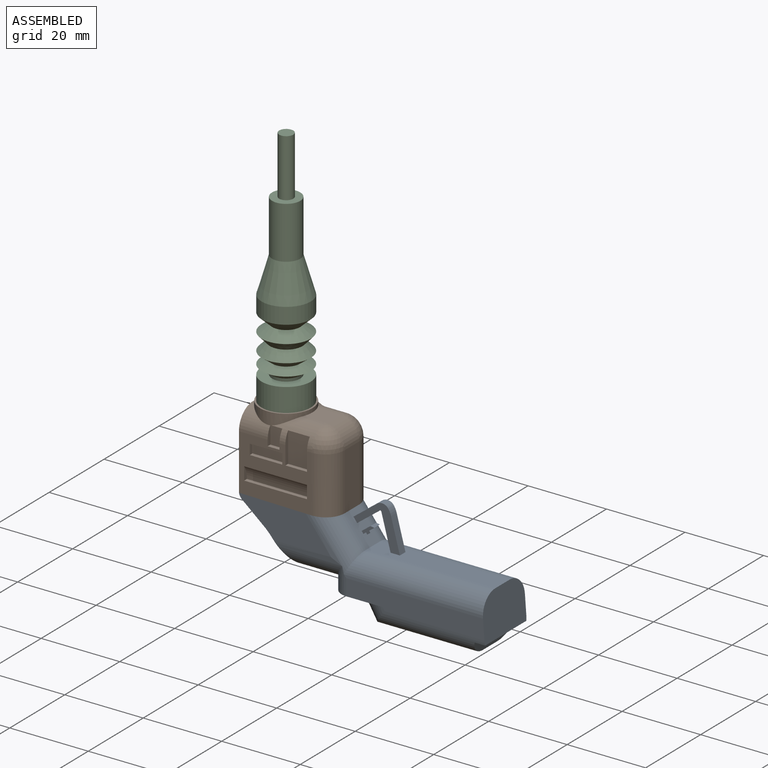
[diagram: assembled view]
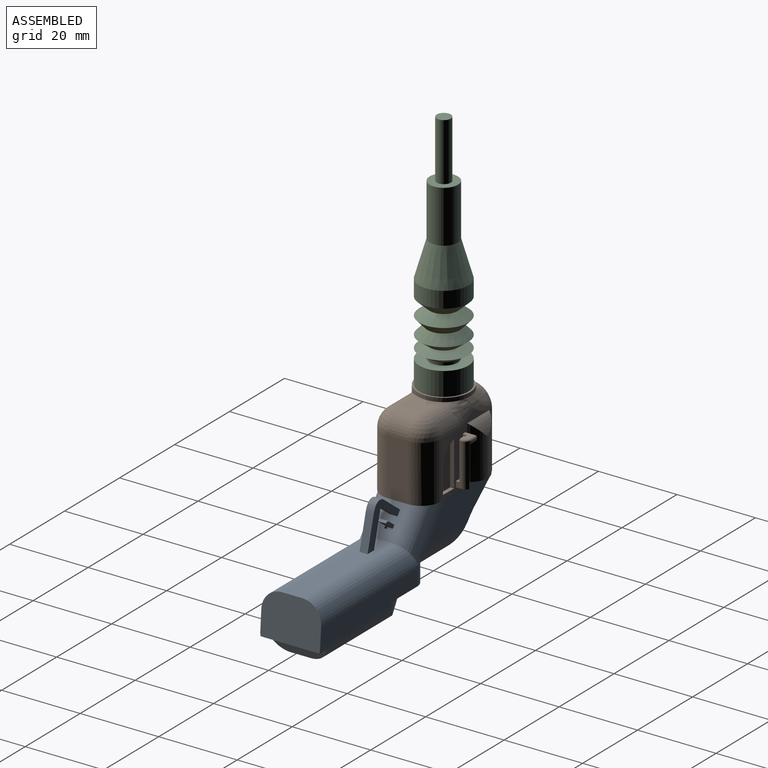
[diagram: assembled view, second angle]
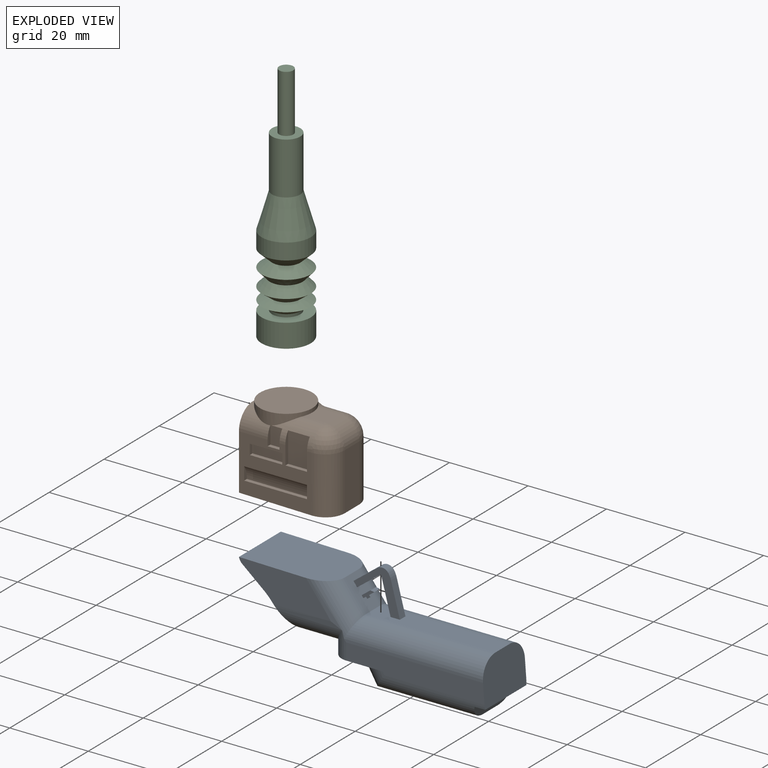
[diagram: exploded view]
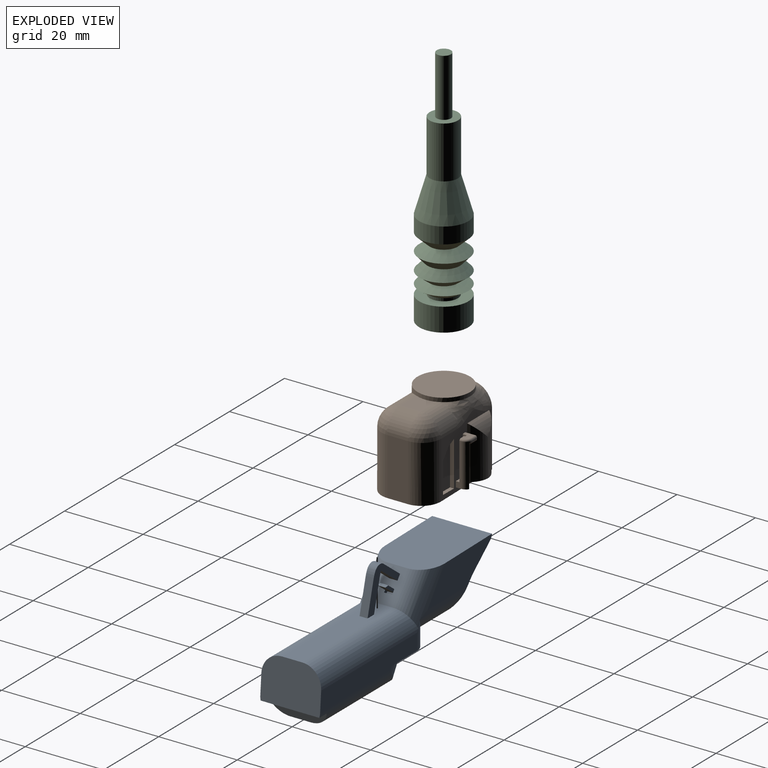
[diagram: exploded view, second angle]
ASSEMBLY  parts=3 mates=2
PART A: 51 faces, bbox 62.8x15.4x26.1 mm
  f0: plane 23.46x15.24mm, normal (0.02,0,1), area 343.8mm2, adj f1,f2,f14,f30,f31,f45
  f1: plane 23.42x8.58mm, normal (0,-1,0), area 133.8mm2, adj f0,f15,f16,f21,f31,f45,f46
  f2: plane 23.42x8.58mm, normal (0,1,0), area 133.8mm2, adj f0,f15,f16,f20,f30,f45,f46
  f3: plane 5.95x4.55mm, normal (0.61,0,-0.79), area 15.3mm2, adj f14,f33,f34,f35
  f4: plane 35.23x4.98mm, normal (0,-1,0), area 166.7mm2, adj f5,f12,f23,f25,f27,f29
  f5: plane 15.24x13.18mm, normal (0,0,-1), area 97.9mm2, adj f4,f6,f18,f19,f22,f23,f26,f27
  f6: plane 5.71x3.32mm, normal (-0.86,0,-0.5), area 11.4mm2, adj f5,f7,f26,f27
  f7: plane 7.19x4.13mm, normal (0,0,-1), area 28.5mm2, adj f6,f8,f24,f25,f26,f27
  f8: plane 7.19x0.1mm, normal (-1,0,0), area 0.6mm2, adj f7,f9,f24,f25
  f9: plane 22.46x5.24mm, normal (0,0,-1), area 117.7mm2, adj f8,f10,f24,f25
  f10: plane 14.97x3.84mm, normal (0.95,0,-0.31), area 50.3mm2, adj f9,f11,f24,f25
  f11: plane 14.97x2.68mm, normal (0,0,-1), area 40.1mm2, adj f10,f12,f24,f25
  f12: plane 15.4x11.29mm, normal (1,0,0.07), area 159.3mm2, adj f4,f11,f13,f19,f24,f25,f28,f29
  f13: plane 33x5.24mm, normal (0,0,1), area 168.1mm2, adj f12,f14,f28,f29,f33,f34,f47,f48
  f14: plane 7.01x5.36mm, normal (0.79,0,0.61), area 40.5mm2, adj f0,f3,f13,f30,f31,f32,f33,f34
  f15: plane 15.24x1.03mm, normal (-0.7,0,-0.71), area 22mm2, adj f1,f2,f16,f46
  f16: plane 15.24x7.22mm, normal (-0.77,0,-0.64), area 123.1mm2, adj f1,f2,f15,f17,f20,f21
  f17: plane 9.59x3.17mm, normal (0,0,-1), area 30.4mm2, adj f16,f18,f20,f21
  f18: plane 7.51x2.36mm, normal (-1,0,0), area 15.2mm2, adj f5,f17,f20,f21,f22,f23
  f19: plane 35.23x4.98mm, normal (0,1,0), area 166.7mm2, adj f5,f12,f22,f24,f26,f28
  f20: cylinder r=6.04mm len=17.36mm, axis (1,0,0), area 116mm2, adj f2,f16,f17,f18,f22,f30
  f21: cylinder r=6.04mm len=17.36mm, axis (-1,0,0), area 116mm2, adj f1,f16,f17,f18,f23,f31
  f22: cylinder r=3.86mm len=6.55mm, axis (0,0,-1), area 26mm2, adj f5,f18,f19,f20,f28,f30
  f23: cylinder r=3.86mm len=6.55mm, axis (0,0,1), area 26mm2, adj f4,f5,f18,f21,f29,f31
  f24: cylinder r=5mm len=29.84mm, axis (1,0,0), area 194.4mm2, adj f7,f8,f9,f10,f11,f12,f19,f26
  f25: cylinder r=5mm len=29.84mm, axis (-1,0,0), area 194.4mm2, adj f4,f7,f8,f9,f10,f11,f12,f27
  f26: cylinder r=6.76mm len=9.4mm, axis (0.5,0,-0.86), area 52mm2, adj f5,f6,f7,f19,f24
  f27: cylinder r=6.76mm len=9.4mm, axis (-0.5,0,0.86), area 52mm2, adj f4,f5,f6,f7,f25
  f28: cylinder r=5mm len=35.49mm, axis (-1,0,0), area 267.3mm2, adj f12,f13,f19,f22,f30
  f29: cylinder r=5mm len=35.49mm, axis (1,0,0), area 267.3mm2, adj f4,f12,f13,f23,f31
  f30: cylinder r=5mm len=14.87mm, axis (-0.61,0,0.79), area 84mm2, adj f0,f2,f14,f20,f22,f28
  f31: cylinder r=5mm len=14.87mm, axis (0.61,0,-0.79), area 84mm2, adj f0,f1,f14,f21,f23,f29
  f32: plane 6.04x4.61mm, normal (-0.61,0,0.79), area 15.5mm2, adj f14,f33,f34,f49
  f33: plane 11.81x10.81mm, normal (0,-1,0), area 37mm2, adj f3,f13,f14,f32,f35,f47,f48,f49
  f34: plane 11.81x10.81mm, normal (0,1,0), area 37mm2, adj f3,f13,f14,f32,f35,f47,f48,f49
  f35: plane 2.04x0.28mm, normal (-0.79,0,-0.61), area 0.7mm2, adj f3,f33,f34,f47
  f36: plane 2.23x2.04mm, normal (-0.61,0,0.79), area 5.7mm2, adj f14,f37,f39,f40
  f37: plane 3.22x2.26mm, normal (0,-1,0), area 2.2mm2, adj f14,f36,f38,f40
  f38: plane 3.58x2.74mm, normal (0.61,0,-0.79), area 9.2mm2, adj f37,f39,f40,f41,f43,f44
  f39: plane 3.22x2.26mm, normal (0,1,0), area 2.2mm2, adj f14,f36,f38,f40
  f40: plane 2.04x1mm, normal (0.13,0,0.99), area 2.1mm2, adj f36,f37,f38,f39
  f41: plane 1.14x1.06mm, normal (0,1,0), area 0.6mm2, adj f14,f38,f42,f44
  f42: plane 2.04x0.79mm, normal (-0.61,0,0.79), area 2mm2, adj f14,f41,f43,f44
  f43: plane 1.14x1.06mm, normal (0,-1,0), area 0.6mm2, adj f14,f38,f42,f44
  f44: plane 2.04x0.45mm, normal (0.79,0,0.61), area 1.2mm2, adj f38,f41,f42,f43
  f45: cylinder r=2.5mm len=15.24mm, axis (0,1,0), area 28.8mm2, adj f0,f1,f2,f46
  f46: plane 15.24x5.79mm, normal (-0.64,0,-0.77), area 115mm2, adj f1,f2,f15,f45
  f47: plane 8.83x2.35mm, normal (-0.97,0,-0.26), area 18.6mm2, adj f13,f33,f34,f35
  f48: plane 8.47x2.25mm, normal (0.97,0,0.26), area 17.9mm2, adj f13,f33,f34,f50
  f49: cylinder r=2mm len=2.8mm, axis (0,1,0), area 6.4mm2, adj f32,f33,f34,f50
  f50: cylinder r=5mm len=2.04mm, axis (0,1,0), area 3.5mm2, adj f33,f34,f48,f49
PART B: 75 faces, bbox 25x18.4x20.5 mm
  f0: plane 18.45x14.43mm, normal (0,-1,0), area 158.7mm2, adj f7,f10,f14,f15,f16,f18,f19,f20
  f1: plane 18.45x16.55mm, normal (0,1,0), area 122.1mm2, adj f3,f5,f10,f22,f24,f25,f27,f31
  f2: cylinder r=1mm len=13.89mm, axis (0,0,1), area 20.3mm2, adj f10,f63,f67,f68
  f3: plane 10.92x1.31mm, normal (1,0,0), area 5.9mm2, adj f1,f4,f46,f51,f61,f62
  f4: cylinder r=0.48mm len=0.48mm, axis (0,-1,0), area 0.3mm2, adj f3,f5,f54,f61
  f5: plane 2.93x2.52mm, normal (0,0,1), area 4.8mm2, adj f1,f4,f47,f49,f53,f54,f58,f59
  f6: cylinder r=5mm len=0.24mm, axis (1,0,0), area 0mm2, adj f12,f19,f21
  f7: cylinder r=5mm len=7.31mm, axis (1,0,0), area 34.5mm2, adj f0,f8,f12,f19,f69
  f8: plane 5.24x0.54mm, normal (0,0,1), area 0.9mm2, adj f7,f12,f24,f69
  f9: plane 5.61x5.24mm, normal (0,0,1), area 27.5mm2, adj f12,f26,f27,f30
  f10: plane 24.98x15.27mm, normal (-0.02,0,-1), area 349mm2, adj f0,f1,f2,f11,f22,f23,f63,f64
  f11: plane 14.51x5.24mm, normal (1,0,0), area 76mm2, adj f10,f22,f23,f30
  f12: cylinder r=6.69mm len=13.38mm, axis (0,0,-1), area 57.7mm2, adj f6,f7,f8,f9,f13,f25,f26
  f13: plane 13.38x13.38mm, normal (0,0,1), area 140.7mm2, adj f12
  f14: plane 7.7x1mm, normal (1,0,0), area 6.7mm2, adj f0,f15,f17,f26
  f15: plane 5.52x1mm, normal (0,0,1), area 5.5mm2, adj f0,f14,f16,f17
  f16: plane 7.7x1mm, normal (-1,0,0), area 6.7mm2, adj f0,f15,f17,f26
  f17: plane 7.7x5.52mm, normal (0,-1,0), area 42.5mm2, adj f14,f15,f16,f26
  f18: plane 4.49x1mm, normal (-1,0,0), area 3.5mm2, adj f0,f20,f21,f26
  f19: plane 4.49x1mm, normal (1,0,0), area 3.5mm2, adj f0,f6,f7,f20,f21
  f20: plane 3.03x1mm, normal (0,0,1), area 3mm2, adj f0,f18,f19,f21
  f21: plane 4.49x3.03mm, normal (0,-1,0), area 13.6mm2, adj f6,f18,f19,f20,f26
  f22: cylinder r=5mm len=14.51mm, axis (0,0,1), area 113.7mm2, adj f1,f10,f11,f29
  f23: cylinder r=5mm len=14.51mm, axis (0,0,-1), area 113.7mm2, adj f0,f10,f11,f28
  f24: cylinder r=5mm len=5mm, axis (-1,0,0), area 4.1mm2, adj f1,f8,f25,f69
  f25: bspline ~13.75x5.28mm, area 60.5mm2, adj f1,f12,f24,f27
  f26: cylinder r=5mm len=10.9mm, axis (1,0,0), area 43mm2, adj f0,f9,f12,f14,f16,f17,f18,f21
  f27: cylinder r=5mm len=5.59mm, axis (-1,0,0), area 43.9mm2, adj f1,f9,f25,f29
  f28: sphere r=5mm, area 39.3mm2, adj f23,f26,f30
  f29: sphere r=5mm, area 39.3mm2, adj f22,f27,f30
  f30: cylinder r=5mm len=5.24mm, axis (0,1,0), area 41.2mm2, adj f9,f11,f28,f29
  f31: plane 8.06x2.49mm, normal (0,0,-1), area 13.8mm2, adj f1,f33,f34
  f32: cylinder r=5mm len=8.06mm, axis (-1,0,0), area 19.9mm2, adj f1,f33,f34
  f33: cylinder r=5mm len=13.53mm, axis (0,0,-1), area 56.8mm2, adj f1,f31,f32,f34
  f34: cylinder r=5mm len=13.53mm, axis (0,0,-1), area 56.8mm2, adj f1,f31,f32,f33
  f35: plane 2.59x1mm, normal (-1,0,0), area 2.6mm2, adj f0,f36,f38,f39
  f36: plane 8.27x1mm, normal (0,0,-1), area 8.3mm2, adj f0,f35,f37,f39
  f37: plane 2.59x1mm, normal (1,0,0), area 2.6mm2, adj f0,f36,f38,f39
  f38: plane 8.27x1mm, normal (0,0,1), area 8.3mm2, adj f0,f35,f37,f39
  f39: plane 8.27x2.59mm, normal (0,-1,0), area 21.4mm2, adj f35,f36,f37,f38
  f40: plane 7.73x1mm, normal (-1,0,0), area 7.7mm2, adj f1,f41,f44,f45
  f41: plane 4x1mm, normal (-0.01,0,1), area 4mm2, adj f1,f40,f42,f45
  f42: plane 11.4x1mm, normal (1,0,0), area 11.4mm2, adj f1,f41,f43,f45
  f43: plane 1.96x1mm, normal (-0.43,0,-0.91), area 2.2mm2, adj f1,f42,f44,f45
  f44: plane 2.7x2.03mm, normal (-0.8,0,-0.6), area 3.4mm2, adj f1,f40,f43,f45
  f45: plane 11.4x4mm, normal (0,1,0), area 39.9mm2, adj f40,f41,f42,f43,f44
  f46: plane 2.78x1.71mm, normal (0,0,-1), area 4mm2, adj f1,f3,f47,f51,f52
  f47: plane 11.4x1.31mm, normal (-1,0,0), area 5.9mm2, adj f1,f5,f46,f48,f52,f58,f61,f62
  f48: plane 2.52x2.14mm, normal (0,0,-1), area 3.3mm2, adj f1,f47,f49,f52,f55,f56,f58,f60
  f49: plane 3x1.25mm, normal (-1,0,0), area 3.6mm2, adj f1,f5,f48,f50,f53,f55
  f50: plane 1.72x0.28mm, normal (0,1,0), area 0.5mm2, adj f49,f51,f53,f55
  f51: cylinder r=1.69mm len=10.92mm, axis (0,0,1), area 19.7mm2, adj f3,f46,f50,f52,f54,f56
  f52: cylinder r=1.69mm len=10.64mm, axis (0,0,-1), area 18.2mm2, adj f46,f47,f48,f51,f56
  f53: cylinder r=0.48mm len=1.72mm, axis (-1,0,0), area 1.3mm2, adj f5,f49,f50,f54
  f54: torus R=1.21mm, axis (0,0,1), area 1.8mm2, adj f4,f5,f51,f53
  f55: cylinder r=0.48mm len=1.72mm, axis (1,0,0), area 1.3mm2, adj f48,f49,f50,f56
  f56: torus R=1.21mm, axis (0,0,1), area 0.5mm2, adj f48,f51,f52,f55
  f57: plane 1.16x0.81mm, normal (1,0,0), area 0.9mm2, adj f1,f58,f59,f60
  f58: plane 1.25x1.02mm, normal (0,-1,0), area 1mm2, adj f5,f47,f48,f57,f59,f60
  f59: cylinder r=0.22mm len=1.16mm, axis (0,1,0), area 0.4mm2, adj f1,f5,f57,f58
  f60: cylinder r=0.22mm len=1.16mm, axis (0,1,0), area 0.4mm2, adj f1,f48,f57,f58
  f61: plane 9.95x1.71mm, normal (0,-1,0), area 16.9mm2, adj f3,f4,f5,f47,f62
  f62: plane 1.71x0.89mm, normal (0,0,1), area 1.5mm2, adj f1,f3,f47,f61
  f63: plane 13.9x0.5mm, normal (0,-1,0), area 6.9mm2, adj f2,f10,f64,f68
  f64: plane 13.9x6.7mm, normal (-1,0,0), area 93.1mm2, adj f0,f10,f63,f69
  f65: plane 13.9x0.5mm, normal (0,1,0), area 6.9mm2, adj f10,f66,f67,f68
  f66: plane 13.9x6.75mm, normal (-1,0,0), area 93.8mm2, adj f1,f10,f65,f69
  f67: cylinder r=1mm len=13.89mm, axis (0,0,-1), area 20.3mm2, adj f2,f10,f65,f68
  f68: plane 1.79x1.49mm, normal (0,0,1), area 2.3mm2, adj f2,f63,f65,f67,f69
  f69: plane 15.24x5.23mm, normal (-1,0,0), area 68.9mm2, adj f0,f1,f7,f8,f24,f64,f66,f68
  f70: plane 3.3x1mm, normal (1,0,0), area 2.3mm2, adj f0,f71,f73,f74
  f71: plane 16.03x1mm, normal (0,0,1), area 16mm2, adj f0,f70,f72,f73
  f72: plane 3.3x1mm, normal (-1,0,0), area 2.3mm2, adj f0,f71,f73,f74
  f73: plane 16.03x0.3mm, normal (0,-1,0), area 4.8mm2, adj f70,f71,f72,f74
  f74: cylinder r=5mm len=16.03mm, axis (-1,0,0), area 51.6mm2, adj f0,f70,f72,f73
PART C: 17 faces, bbox 12.5x12.5x61.7 mm
  f0: cylinder r=6.26mm len=12.53mm, axis (0,0,-1), area 161.8mm2, adj f1,f16
  f1: cone r=6.26mm half-angle=16.2deg, axis (0,0,-1), area 295.6mm2, adj f0,f2
  f2: cylinder r=3.61mm len=13.33mm, axis (0,0,-1), area 302.2mm2, adj f1,f3
  f3: plane 7.22x7.22mm, normal (0,0,1), area 30.7mm2, adj f2,f4
  f4: cylinder r=1.8mm len=14.75mm, axis (0,0,-1), area 167.2mm2, adj f3,f5
  f5: plane 3.61x3.61mm, normal (0,0,1), area 10.2mm2, adj f4
  f6: plane 12.53x12.53mm, normal (0,0,-1), area 123.2mm2, adj f7
  f7: cylinder r=6.26mm len=12.53mm, axis (0,0,-1), area 235mm2, adj f6,f8
  f8: plane 12.53x12.53mm, normal (0,0,1), area 82.9mm2, adj f7,f9
  f9: cylinder r=3.58mm len=7.16mm, axis (0,0,-1), area 16.3mm2, adj f8,f10
  f10: cone r=3.58mm half-angle=58deg, axis (0,0,1), area 97.8mm2, adj f9,f11
  f11: cone r=6.26mm half-angle=68.5deg, axis (0,0,-1), area 89.1mm2, adj f10,f12
  f12: cone r=3.58mm half-angle=53.1deg, axis (0,0,1), area 103.7mm2, adj f11,f13
  f13: cone r=4.18mm half-angle=43.7deg, axis (0,0,-1), area 98.9mm2, adj f12,f14
  f14: cone r=6.26mm half-angle=42.9deg, axis (0,0,1), area 100.3mm2, adj f13,f15
  f15: cone r=6.26mm half-angle=53.4deg, axis (0,0,-1), area 103.3mm2, adj f14,f16
  f16: cone r=3.58mm half-angle=47.4deg, axis (0,0,1), area 112.7mm2, adj f0,f15
PLACE A t=(-25.59,9.3,-43.66)mm
PLACE B t=(-25.6,9.3,-47.78)mm
PLACE C t=(-32.77,1.7,-52.32)mm
MATE fastened B.f12 <-> C.f0  axis (0,0,1) through (-32.77,1.7,-52.32)mm
MATE fastened B.f10 <-> A.f0  axis (-0.02,0,-1) through (-28.14,1.68,-72.64)mm
